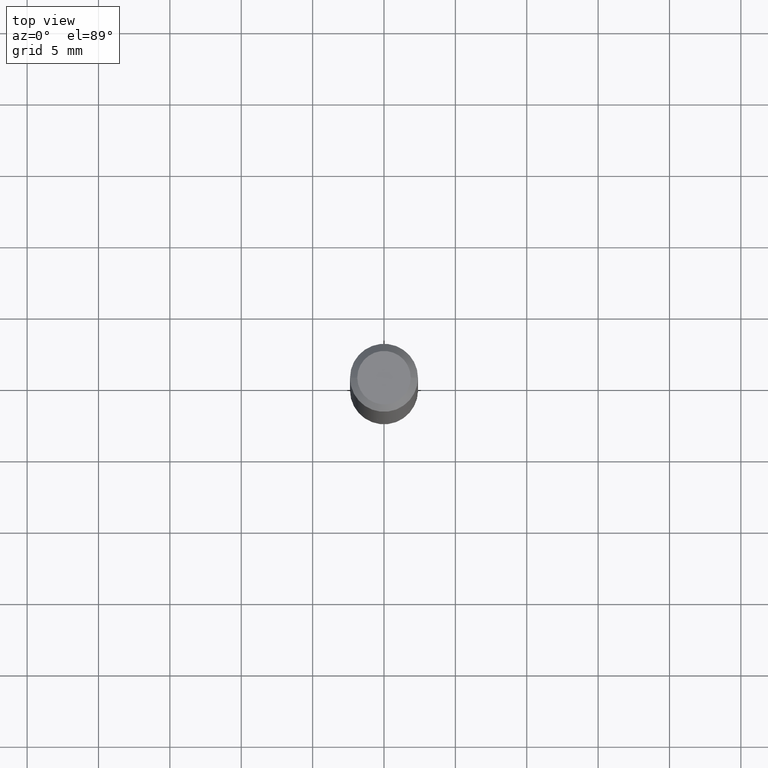
[diagram: clean part render]
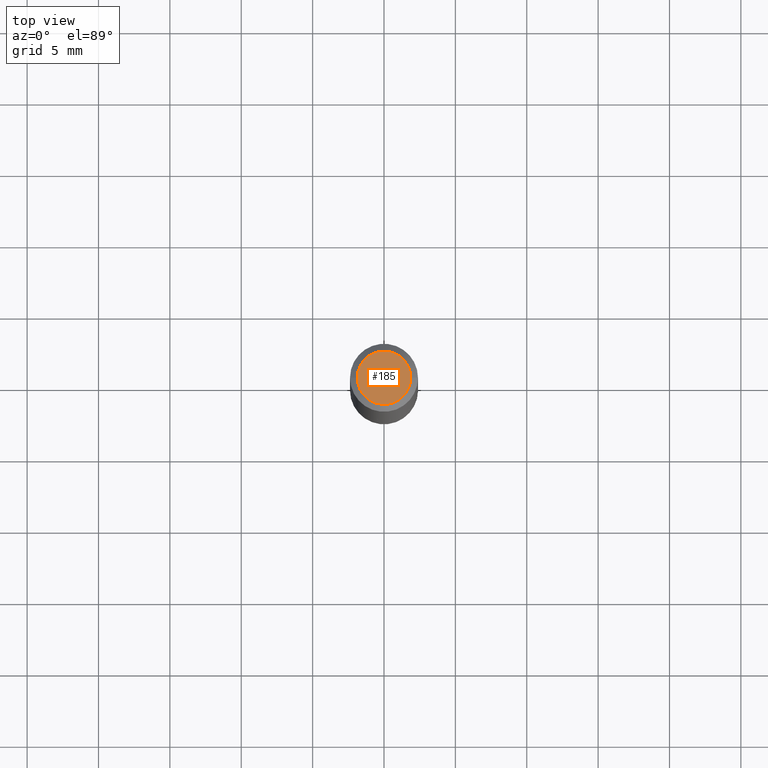
[diagram: same view with one face highlighted and labeled with its STEP entity id]
A machine part, top view. The second image highlights one B-rep face of the part: STEP entity #185.
In plain terms, the highlighted planar face has unit normal (0, -0, -1).
Its self-contained STEP definition (entity closure, byte-faithful):
#14 = PLANE ( 'NONE',  #314 ) ;
#15 = DIRECTION ( 'NONE',  ( -2.445468806185136597E-29, 3.491481338843145583E-15, 1.000000000000000000 ) ) ;
#45 = CARTESIAN_POINT ( 'NONE',  ( -0.07374999999999982958, 5.499083108677921624E-16, 4.268512490096688071E-18 ) ) ;
#52 = EDGE_CURVE ( 'NONE', #153, #94, #181, .T. ) ;
#53 = CARTESIAN_POINT ( 'NONE',  ( -1.043851414335219820E-46, 1.490343170380447200E-32, 4.268512490100411279E-18 ) ) ;
#65 = EDGE_LOOP ( 'NONE', ( #259, #159 ) ) ;
#76 = DIRECTION ( 'NONE',  ( -1.000000000000000000, 6.982962677686265922E-15, -4.876176775795935793E-29 ) ) ;
#77 = DIRECTION ( 'NONE',  ( 1.000000000000000000, -6.982962677686266711E-15, 4.875869617646596737E-29 ) ) ;
#80 = AXIS2_PLACEMENT_3D ( 'NONE', #53, #301, #77 ) ;
#81 = DIRECTION ( 'NONE',  ( 1.000000000000000000, -6.982962677686266711E-15, 4.875869617646596737E-29 ) ) ;
#94 = VERTEX_POINT ( 'NONE', #165 ) ;
#134 = CARTESIAN_POINT ( 'NONE',  ( 5.149934974793609077E-16, 0.07374999999999982958, -2.553624924946311773E-16 ) ) ;
#144 = EDGE_CURVE ( 'NONE', #94, #153, #198, .T. ) ;
#153 = VERTEX_POINT ( 'NONE', #45 ) ;
#159 = ORIENTED_EDGE ( 'NONE', *, *, #144, .T. ) ;
#165 = CARTESIAN_POINT ( 'NONE',  ( 0.07374999999999982958, -6.094815207017961198E-16, 4.268512490104342487E-18 ) ) ;
#181 = CIRCLE ( 'NONE', #227, 0.07374999999999982958 ) ;
#185 = ADVANCED_FACE ( 'NONE', ( #268 ), #14, .F. ) ;
#198 = CIRCLE ( 'NONE', #80, 0.07374999999999982958 ) ;
#227 = AXIS2_PLACEMENT_3D ( 'NONE', #243, #15, #81 ) ;
#243 = CARTESIAN_POINT ( 'NONE',  ( -1.043851414335219820E-46, 1.490343170380447200E-32, 4.268512490100411279E-18 ) ) ;
#259 = ORIENTED_EDGE ( 'NONE', *, *, #52, .T. ) ;
#268 = FACE_OUTER_BOUND ( 'NONE', #65, .T. ) ;
#301 = DIRECTION ( 'NONE',  ( -2.445468806185136597E-29, 3.491481338843145583E-15, 1.000000000000000000 ) ) ;
#314 = AXIS2_PLACEMENT_3D ( 'NONE', #134, #328, #76 ) ;
#328 = DIRECTION ( 'NONE',  ( 2.438088387897960049E-29, -3.491481338843145188E-15, -1.000000000000000000 ) ) ;